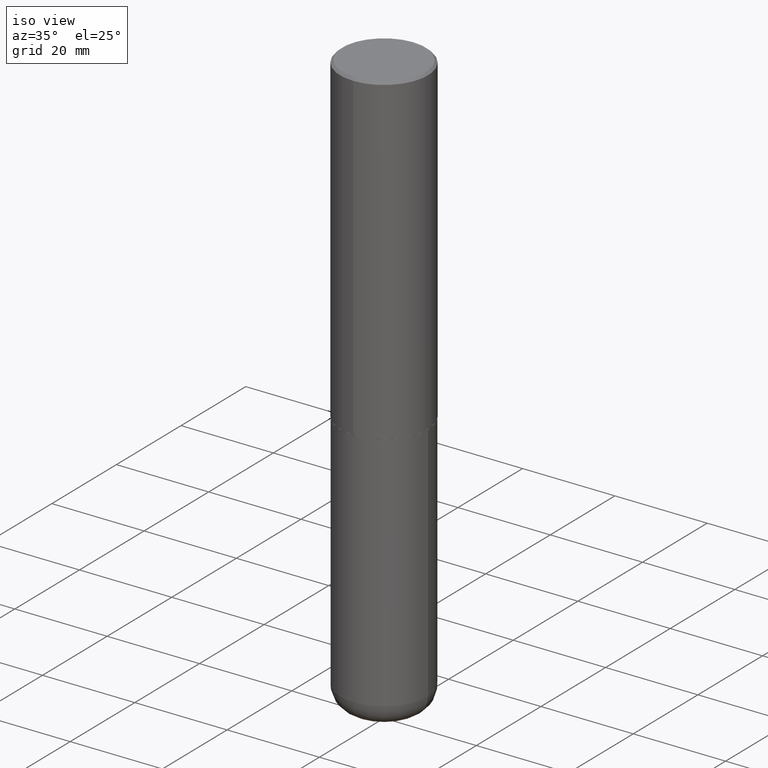
[diagram: clean part render]
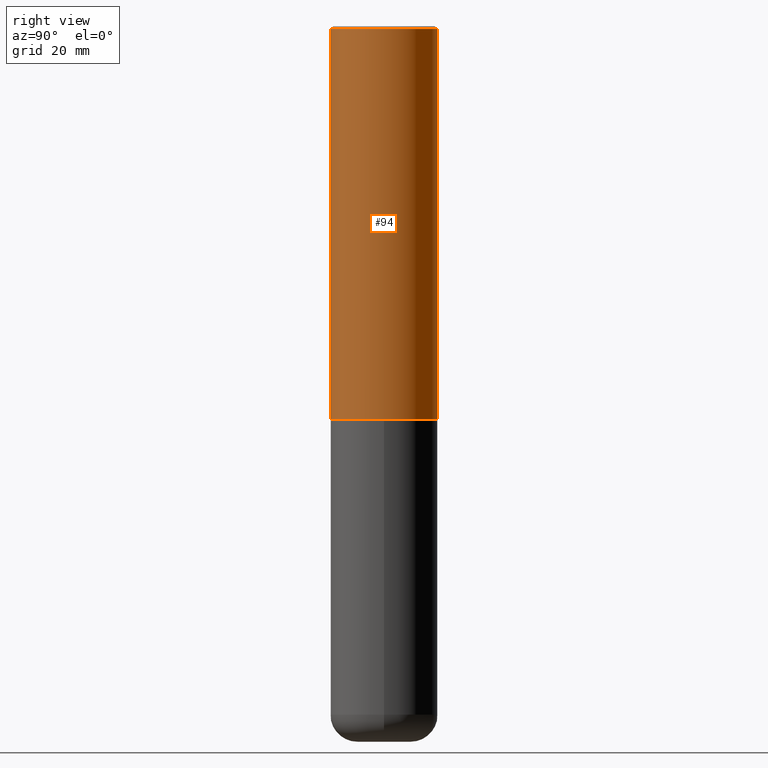
[diagram: tour spotlight — one face highlighted and labeled with its STEP entity id]
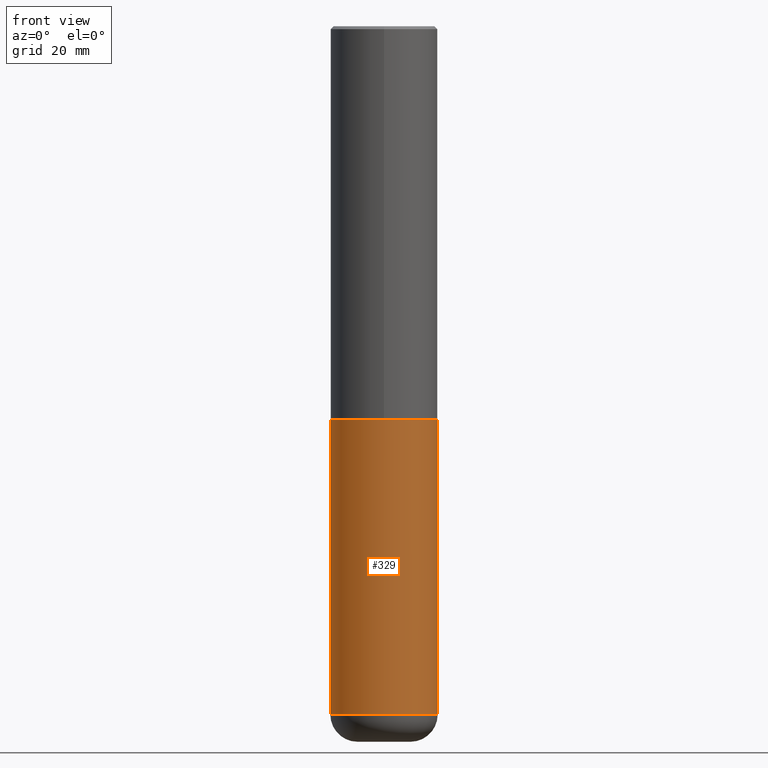
[diagram: tour spotlight — one face highlighted and labeled with its STEP entity id]
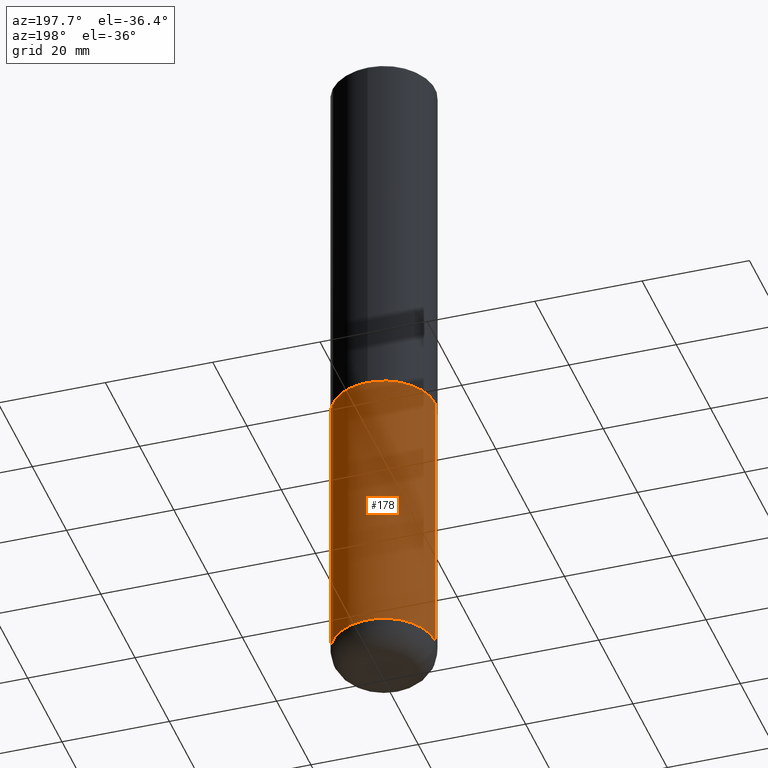
[diagram: tour spotlight — one face highlighted and labeled with its STEP entity id]
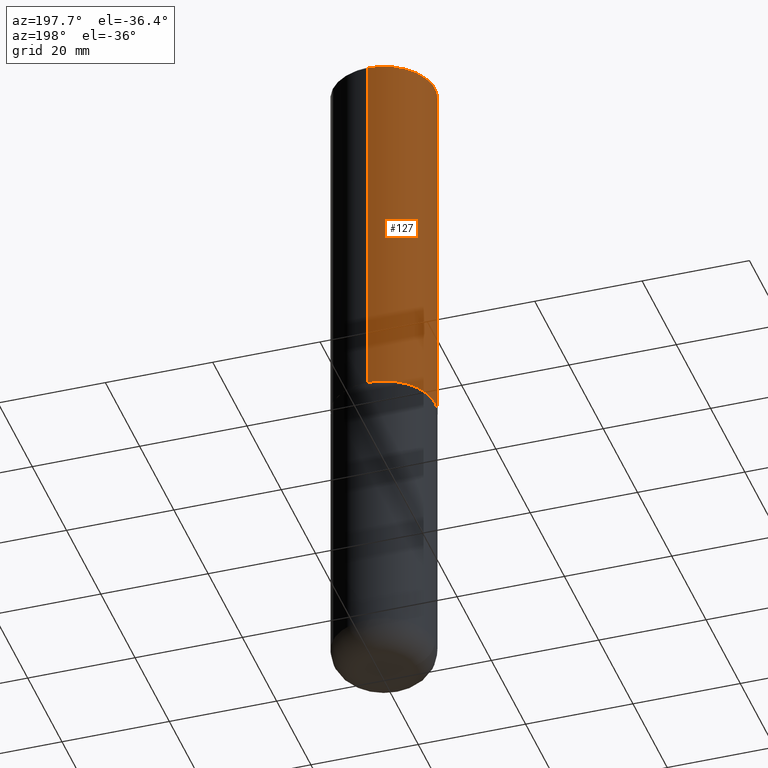
[diagram: tour spotlight — one face highlighted and labeled with its STEP entity id]
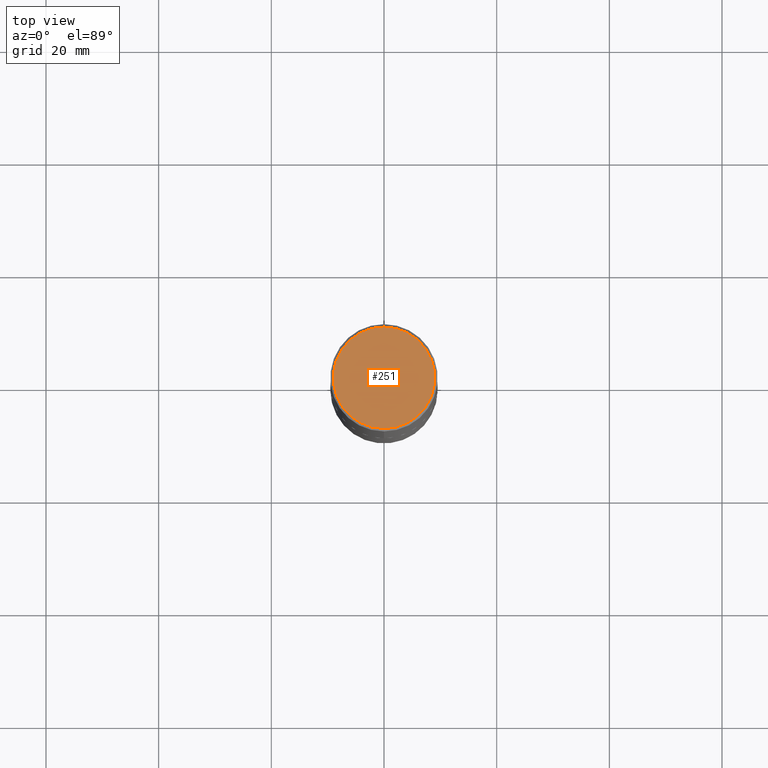
[diagram: tour spotlight — one face highlighted and labeled with its STEP entity id]
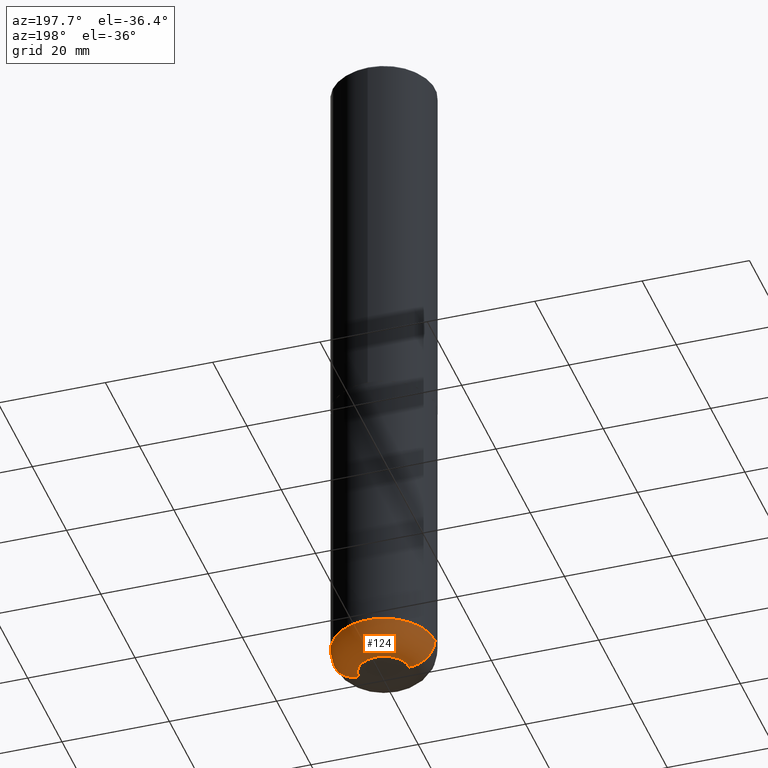
[diagram: tour spotlight — one face highlighted and labeled with its STEP entity id]
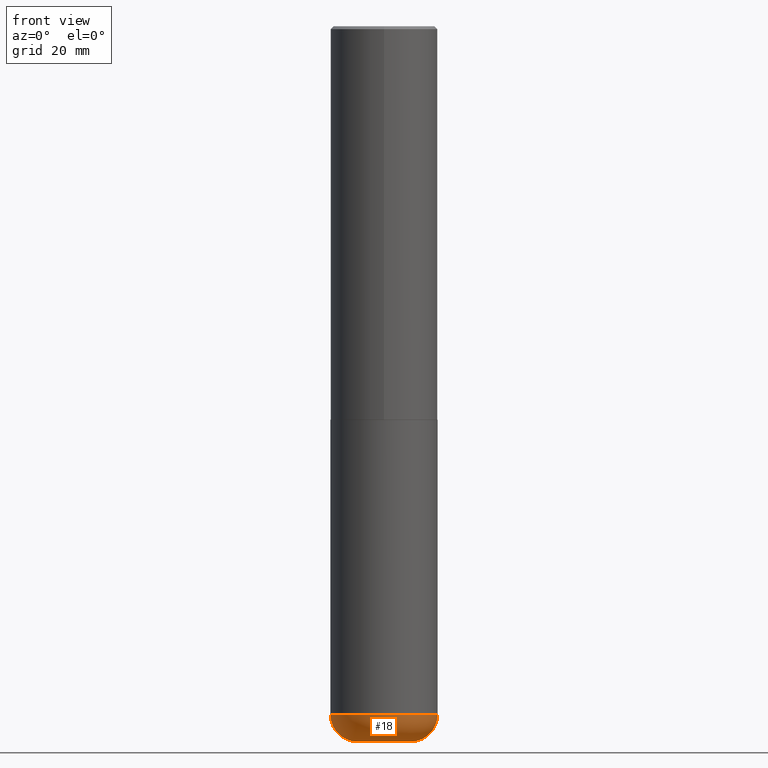
[diagram: tour spotlight — one face highlighted and labeled with its STEP entity id]
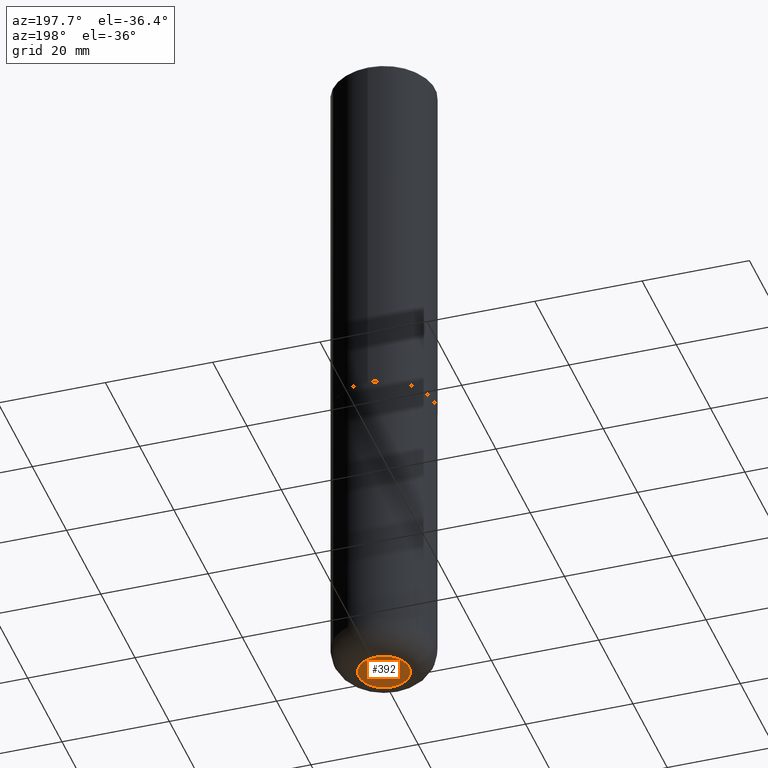
[diagram: tour spotlight — one face highlighted and labeled with its STEP entity id]
A machine part: a face-by-face anatomy tour. The part has 14 B-rep faces; the first image is the clean iso view, then the 8 largest visible faces are spotlighted one at a time (largest first), each with its STEP entity span.

Face 1 — right view, entity #94. In plain terms, the highlighted cylindrical surface (partial cylindrical patch) has radius 9.525 mm, axis along (-0, 0, 1).
Definition (entity closure, byte-faithful):
#13 = ORIENTED_EDGE ( 'NONE', *, *, #312, .T. ) ;
#14 = VECTOR ( 'NONE', #346, 39.37007874015748143 ) ;
#15 = CARTESIAN_POINT ( 'NONE',  ( 6.724165036897648492E-29, -9.595832025636787455E-15, -2.749000000000000110 ) ) ;
#28 = VERTEX_POINT ( 'NONE', #230 ) ;
#41 = EDGE_CURVE ( 'NONE', #228, #325, #368, .T. ) ;
#48 = VECTOR ( 'NONE', #375, 39.37007874015748143 ) ;
#68 = AXIS2_PLACEMENT_3D ( 'NONE', #317, #92, #411 ) ;
#92 = DIRECTION ( 'NONE',  ( -2.446040391741596606E-29, 3.490662795793665557E-15, 1.000000000000000000 ) ) ;
#93 = VERTEX_POINT ( 'NONE', #286 ) ;
#94 = ADVANCED_FACE ( 'NONE', ( #183 ), #220, .T. ) ;
#103 = EDGE_LOOP ( 'NONE', ( #330, #13, #232, #201 ) ) ;
#113 = CARTESIAN_POINT ( 'NONE',  ( 2.664535259100376880E-15, 0.3750000000000002220, -1.308998548422625521E-15 ) ) ;
#137 = DIRECTION ( 'NONE',  ( -2.446040391741596606E-29, 3.490662795793665557E-15, 1.000000000000000000 ) ) ;
#143 = CIRCLE ( 'NONE', #357, 0.3750000000000003886 ) ;
#149 = LINE ( 'NONE', #113, #14 ) ;
#183 = FACE_OUTER_BOUND ( 'NONE', #103, .T. ) ;
#193 = EDGE_CURVE ( 'NONE', #325, #93, #331, .T. ) ;
#201 = ORIENTED_EDGE ( 'NONE', *, *, #41, .F. ) ;
#220 = CYLINDRICAL_SURFACE ( 'NONE', #68, 0.3750000000000002220 ) ;
#226 = EDGE_CURVE ( 'NONE', #228, #28, #143, .T. ) ;
#228 = VERTEX_POINT ( 'NONE', #274 ) ;
#230 = CARTESIAN_POINT ( 'NONE',  ( 2.664535259100411196E-15, 0.3749999999999907296, -2.749000000000000998 ) ) ;
#232 = ORIENTED_EDGE ( 'NONE', *, *, #193, .F. ) ;
#234 = DIRECTION ( 'NONE',  ( -2.446040391741596606E-29, 3.490662795793665557E-15, 1.000000000000000000 ) ) ;
#244 = CARTESIAN_POINT ( 'NONE',  ( -2.618611004132351594E-15, -0.3750000000000002220, 1.308998548422625521E-15 ) ) ;
#265 = CARTESIAN_POINT ( 'NONE',  ( 4.892080783483214581E-31, -6.981325591587361238E-17, -0.02000000000000008715 ) ) ;
#274 = CARTESIAN_POINT ( 'NONE',  ( -2.618611004132284935E-15, -0.3750000000000099920, -2.748999999999999222 ) ) ;
#277 = DIRECTION ( 'NONE',  ( -6.982962677686265922E-15, -1.000000000000000000, 3.494488891895536035E-15 ) ) ;
#286 = CARTESIAN_POINT ( 'NONE',  ( 2.618611004132350411E-15, 0.3749999999999999445, -0.02000000000000139513 ) ) ;
#311 = CARTESIAN_POINT ( 'NONE',  ( -2.572686749164323547E-15, -0.3750000000000001110, -0.01999999999999877570 ) ) ;
#312 = EDGE_CURVE ( 'NONE', #28, #93, #149, .T. ) ;
#317 = CARTESIAN_POINT ( 'NONE',  ( 0.000000000000000000, 0.000000000000000000, 0.000000000000000000 ) ) ;
#325 = VERTEX_POINT ( 'NONE', #311 ) ;
#330 = ORIENTED_EDGE ( 'NONE', *, *, #226, .T. ) ;
#331 = CIRCLE ( 'NONE', #377, 0.3750000000000000555 ) ;
#346 = DIRECTION ( 'NONE',  ( -2.446040391741596606E-29, 3.490662795793665557E-15, 1.000000000000000000 ) ) ;
#357 = AXIS2_PLACEMENT_3D ( 'NONE', #15, #137, #364 ) ;
#364 = DIRECTION ( 'NONE',  ( -6.982962677686265922E-15, -1.000000000000000000, 2.913971193241877611E-15 ) ) ;
#368 = LINE ( 'NONE', #244, #48 ) ;
#375 = DIRECTION ( 'NONE',  ( -2.446040391741596606E-29, 3.490662795793665557E-15, 1.000000000000000000 ) ) ;
#377 = AXIS2_PLACEMENT_3D ( 'NONE', #265, #234, #277 ) ;
#411 = DIRECTION ( 'NONE',  ( -6.982962677686266711E-15, -1.000000000000000000, 3.490662795793665951E-15 ) ) ;

Face 2 — front view, entity #329. In plain terms, the highlighted cylindrical surface (partial cylindrical patch) has radius 9.525 mm, axis along (-0, 0, 1).
Definition (entity closure, byte-faithful):
#7 = VERTEX_POINT ( 'NONE', #262 ) ;
#19 = CIRCLE ( 'NONE', #206, 0.3750000000000001110 ) ;
#33 = ORIENTED_EDGE ( 'NONE', *, *, #133, .F. ) ;
#42 = DIRECTION ( 'NONE',  ( -2.445468806185136597E-29, 3.491481338843145583E-15, 1.000000000000000000 ) ) ;
#46 = FACE_OUTER_BOUND ( 'NONE', #267, .T. ) ;
#54 = LINE ( 'NONE', #188, #247 ) ;
#59 = DIRECTION ( 'NONE',  ( -2.445468806185136877E-29, 3.491481338843145188E-15, 1.000000000000000000 ) ) ;
#60 = ORIENTED_EDGE ( 'NONE', *, *, #240, .T. ) ;
#80 = CYLINDRICAL_SURFACE ( 'NONE', #217, 0.3750000000000001110 ) ;
#85 = DIRECTION ( 'NONE',  ( 1.000000000000000000, -6.982962677686265922E-15, 4.876176775795935793E-29 ) ) ;
#87 = CARTESIAN_POINT ( 'NONE',  ( -0.3750000000000000555, -1.053326420172671351E-14, -2.750000000000000000 ) ) ;
#121 = CARTESIAN_POINT ( 'NONE',  ( 0.3750000000000001110, -2.618611004132350411E-15, 1.828566290923476483E-29 ) ) ;
#133 = EDGE_CURVE ( 'NONE', #138, #365, #54, .T. ) ;
#138 = VERTEX_POINT ( 'NONE', #156 ) ;
#156 = CARTESIAN_POINT ( 'NONE',  ( -0.3750000000000000555, -1.412948998073515443E-14, -4.810000000000000497 ) ) ;
#158 = EDGE_CURVE ( 'NONE', #7, #397, #413, .T. ) ;
#164 = CARTESIAN_POINT ( 'NONE',  ( 0.3750000000000000555, -1.222018468595100145E-14, -2.750000000000000000 ) ) ;
#168 = CARTESIAN_POINT ( 'NONE',  ( 1.176270495775050811E-28, -1.679402523983553013E-14, -4.810000000000000497 ) ) ;
#175 = EDGE_CURVE ( 'NONE', #365, #397, #393, .T. ) ;
#176 = DIRECTION ( 'NONE',  ( -2.445468806185136597E-29, 3.491481338843145583E-15, 1.000000000000000000 ) ) ;
#188 = CARTESIAN_POINT ( 'NONE',  ( -0.3750000000000001110, 2.664535259100376486E-15, -1.844600658845590159E-29 ) ) ;
#206 = AXIS2_PLACEMENT_3D ( 'NONE', #168, #42, #271 ) ;
#217 = AXIS2_PLACEMENT_3D ( 'NONE', #345, #176, #85 ) ;
#223 = CARTESIAN_POINT ( 'NONE',  ( 6.725039217009124520E-29, -9.601573681818649859E-15, -2.750000000000000000 ) ) ;
#240 = EDGE_CURVE ( 'NONE', #138, #7, #19, .T. ) ;
#247 = VECTOR ( 'NONE', #59, 39.37007874015748143 ) ;
#262 = CARTESIAN_POINT ( 'NONE',  ( 0.3750000000000000555, -1.941263624396788015E-14, -4.810000000000000497 ) ) ;
#267 = EDGE_LOOP ( 'NONE', ( #33, #60, #396, #369 ) ) ;
#271 = DIRECTION ( 'NONE',  ( 1.000000000000000000, -6.982962677686265922E-15, 0.000000000000000000 ) ) ;
#294 = DIRECTION ( 'NONE',  ( 1.000000000000000000, -6.982962677686266711E-15, 0.000000000000000000 ) ) ;
#306 = VECTOR ( 'NONE', #321, 39.37007874015748143 ) ;
#321 = DIRECTION ( 'NONE',  ( -2.445468806185136877E-29, 3.491481338843145188E-15, 1.000000000000000000 ) ) ;
#322 = AXIS2_PLACEMENT_3D ( 'NONE', #223, #418, #294 ) ;
#329 = ADVANCED_FACE ( 'NONE', ( #46 ), #80, .T. ) ;
#345 = CARTESIAN_POINT ( 'NONE',  ( 0.000000000000000000, 0.000000000000000000, 0.000000000000000000 ) ) ;
#365 = VERTEX_POINT ( 'NONE', #87 ) ;
#369 = ORIENTED_EDGE ( 'NONE', *, *, #175, .F. ) ;
#393 = CIRCLE ( 'NONE', #322, 0.3750000000000000555 ) ;
#396 = ORIENTED_EDGE ( 'NONE', *, *, #158, .T. ) ;
#397 = VERTEX_POINT ( 'NONE', #164 ) ;
#413 = LINE ( 'NONE', #121, #306 ) ;
#418 = DIRECTION ( 'NONE',  ( -2.445468806185136597E-29, 3.491481338843145583E-15, 1.000000000000000000 ) ) ;

Face 3 — auxiliary view, entity #178. In plain terms, the highlighted cylindrical surface (partial cylindrical patch) has radius 9.525 mm, axis along (-0, 0, 1).
Definition (entity closure, byte-faithful):
#7 = VERTEX_POINT ( 'NONE', #262 ) ;
#9 = EDGE_CURVE ( 'NONE', #397, #365, #125, .T. ) ;
#34 = AXIS2_PLACEMENT_3D ( 'NONE', #77, #142, #81 ) ;
#49 = EDGE_CURVE ( 'NONE', #7, #138, #104, .T. ) ;
#54 = LINE ( 'NONE', #188, #247 ) ;
#59 = DIRECTION ( 'NONE',  ( -2.445468806185136877E-29, 3.491481338843145188E-15, 1.000000000000000000 ) ) ;
#64 = DIRECTION ( 'NONE',  ( -2.445468806185136597E-29, 3.491481338843145583E-15, 1.000000000000000000 ) ) ;
#67 = ORIENTED_EDGE ( 'NONE', *, *, #9, .F. ) ;
#72 = ORIENTED_EDGE ( 'NONE', *, *, #133, .T. ) ;
#77 = CARTESIAN_POINT ( 'NONE',  ( 1.176270495775050811E-28, -1.679402523983553013E-14, -4.810000000000000497 ) ) ;
#81 = DIRECTION ( 'NONE',  ( 1.000000000000000000, -6.982962677686265922E-15, 0.000000000000000000 ) ) ;
#87 = CARTESIAN_POINT ( 'NONE',  ( -0.3750000000000000555, -1.053326420172671351E-14, -2.750000000000000000 ) ) ;
#90 = AXIS2_PLACEMENT_3D ( 'NONE', #100, #150, #371 ) ;
#97 = CYLINDRICAL_SURFACE ( 'NONE', #90, 0.3750000000000001110 ) ;
#100 = CARTESIAN_POINT ( 'NONE',  ( 0.000000000000000000, 0.000000000000000000, 0.000000000000000000 ) ) ;
#104 = CIRCLE ( 'NONE', #34, 0.3750000000000001110 ) ;
#106 = ORIENTED_EDGE ( 'NONE', *, *, #49, .T. ) ;
#117 = EDGE_LOOP ( 'NONE', ( #106, #72, #67, #303 ) ) ;
#121 = CARTESIAN_POINT ( 'NONE',  ( 0.3750000000000001110, -2.618611004132350411E-15, 1.828566290923476483E-29 ) ) ;
#125 = CIRCLE ( 'NONE', #410, 0.3750000000000000555 ) ;
#131 = CARTESIAN_POINT ( 'NONE',  ( 6.725039217009124520E-29, -9.601573681818649859E-15, -2.750000000000000000 ) ) ;
#133 = EDGE_CURVE ( 'NONE', #138, #365, #54, .T. ) ;
#138 = VERTEX_POINT ( 'NONE', #156 ) ;
#142 = DIRECTION ( 'NONE',  ( -2.445468806185136597E-29, 3.491481338843145583E-15, 1.000000000000000000 ) ) ;
#150 = DIRECTION ( 'NONE',  ( -2.445468806185136597E-29, 3.491481338843145583E-15, 1.000000000000000000 ) ) ;
#156 = CARTESIAN_POINT ( 'NONE',  ( -0.3750000000000000555, -1.412948998073515443E-14, -4.810000000000000497 ) ) ;
#158 = EDGE_CURVE ( 'NONE', #7, #397, #413, .T. ) ;
#164 = CARTESIAN_POINT ( 'NONE',  ( 0.3750000000000000555, -1.222018468595100145E-14, -2.750000000000000000 ) ) ;
#178 = ADVANCED_FACE ( 'NONE', ( #389 ), #97, .T. ) ;
#188 = CARTESIAN_POINT ( 'NONE',  ( -0.3750000000000001110, 2.664535259100376486E-15, -1.844600658845590159E-29 ) ) ;
#247 = VECTOR ( 'NONE', #59, 39.37007874015748143 ) ;
#262 = CARTESIAN_POINT ( 'NONE',  ( 0.3750000000000000555, -1.941263624396788015E-14, -4.810000000000000497 ) ) ;
#303 = ORIENTED_EDGE ( 'NONE', *, *, #158, .F. ) ;
#306 = VECTOR ( 'NONE', #321, 39.37007874015748143 ) ;
#321 = DIRECTION ( 'NONE',  ( -2.445468806185136877E-29, 3.491481338843145188E-15, 1.000000000000000000 ) ) ;
#365 = VERTEX_POINT ( 'NONE', #87 ) ;
#371 = DIRECTION ( 'NONE',  ( 1.000000000000000000, -6.982962677686265922E-15, 4.876176775795935793E-29 ) ) ;
#389 = FACE_OUTER_BOUND ( 'NONE', #117, .T. ) ;
#397 = VERTEX_POINT ( 'NONE', #164 ) ;
#398 = DIRECTION ( 'NONE',  ( 1.000000000000000000, -6.982962677686266711E-15, 0.000000000000000000 ) ) ;
#410 = AXIS2_PLACEMENT_3D ( 'NONE', #131, #64, #398 ) ;
#413 = LINE ( 'NONE', #121, #306 ) ;

Face 4 — auxiliary view, entity #127. In plain terms, the highlighted cylindrical surface (partial cylindrical patch) has radius 9.525 mm, axis along (-0, 0, 1).
Definition (entity closure, byte-faithful):
#3 = FACE_OUTER_BOUND ( 'NONE', #385, .T. ) ;
#14 = VECTOR ( 'NONE', #346, 39.37007874015748143 ) ;
#17 = DIRECTION ( 'NONE',  ( -6.982962677686265922E-15, -1.000000000000000000, 2.913971193241877611E-15 ) ) ;
#28 = VERTEX_POINT ( 'NONE', #230 ) ;
#41 = EDGE_CURVE ( 'NONE', #228, #325, #368, .T. ) ;
#48 = VECTOR ( 'NONE', #375, 39.37007874015748143 ) ;
#51 = AXIS2_PLACEMENT_3D ( 'NONE', #239, #207, #17 ) ;
#62 = EDGE_CURVE ( 'NONE', #28, #228, #280, .T. ) ;
#93 = VERTEX_POINT ( 'NONE', #286 ) ;
#101 = ORIENTED_EDGE ( 'NONE', *, *, #62, .T. ) ;
#113 = CARTESIAN_POINT ( 'NONE',  ( 2.664535259100376880E-15, 0.3750000000000002220, -1.308998548422625521E-15 ) ) ;
#122 = DIRECTION ( 'NONE',  ( -2.446040391741596606E-29, 3.490662795793665557E-15, 1.000000000000000000 ) ) ;
#127 = ADVANCED_FACE ( 'NONE', ( #3 ), #184, .T. ) ;
#149 = LINE ( 'NONE', #113, #14 ) ;
#152 = ORIENTED_EDGE ( 'NONE', *, *, #370, .F. ) ;
#154 = AXIS2_PLACEMENT_3D ( 'NONE', #218, #122, #255 ) ;
#159 = ORIENTED_EDGE ( 'NONE', *, *, #41, .T. ) ;
#160 = DIRECTION ( 'NONE',  ( -6.982962677686265922E-15, -1.000000000000000000, 3.494488891895536035E-15 ) ) ;
#166 = ORIENTED_EDGE ( 'NONE', *, *, #312, .F. ) ;
#184 = CYLINDRICAL_SURFACE ( 'NONE', #154, 0.3750000000000002220 ) ;
#207 = DIRECTION ( 'NONE',  ( -2.446040391741596606E-29, 3.490662795793665557E-15, 1.000000000000000000 ) ) ;
#218 = CARTESIAN_POINT ( 'NONE',  ( 0.000000000000000000, 0.000000000000000000, 0.000000000000000000 ) ) ;
#228 = VERTEX_POINT ( 'NONE', #274 ) ;
#230 = CARTESIAN_POINT ( 'NONE',  ( 2.664535259100411196E-15, 0.3749999999999907296, -2.749000000000000998 ) ) ;
#239 = CARTESIAN_POINT ( 'NONE',  ( 6.724165036897648492E-29, -9.595832025636787455E-15, -2.749000000000000110 ) ) ;
#244 = CARTESIAN_POINT ( 'NONE',  ( -2.618611004132351594E-15, -0.3750000000000002220, 1.308998548422625521E-15 ) ) ;
#249 = CARTESIAN_POINT ( 'NONE',  ( 4.892080783483214581E-31, -6.981325591587361238E-17, -0.02000000000000008715 ) ) ;
#255 = DIRECTION ( 'NONE',  ( -6.982962677686266711E-15, -1.000000000000000000, 3.490662795793665951E-15 ) ) ;
#259 = DIRECTION ( 'NONE',  ( -2.446040391741596606E-29, 3.490662795793665557E-15, 1.000000000000000000 ) ) ;
#261 = CIRCLE ( 'NONE', #358, 0.3750000000000000555 ) ;
#274 = CARTESIAN_POINT ( 'NONE',  ( -2.618611004132284935E-15, -0.3750000000000099920, -2.748999999999999222 ) ) ;
#280 = CIRCLE ( 'NONE', #51, 0.3750000000000003886 ) ;
#286 = CARTESIAN_POINT ( 'NONE',  ( 2.618611004132350411E-15, 0.3749999999999999445, -0.02000000000000139513 ) ) ;
#311 = CARTESIAN_POINT ( 'NONE',  ( -2.572686749164323547E-15, -0.3750000000000001110, -0.01999999999999877570 ) ) ;
#312 = EDGE_CURVE ( 'NONE', #28, #93, #149, .T. ) ;
#325 = VERTEX_POINT ( 'NONE', #311 ) ;
#346 = DIRECTION ( 'NONE',  ( -2.446040391741596606E-29, 3.490662795793665557E-15, 1.000000000000000000 ) ) ;
#358 = AXIS2_PLACEMENT_3D ( 'NONE', #249, #259, #160 ) ;
#368 = LINE ( 'NONE', #244, #48 ) ;
#370 = EDGE_CURVE ( 'NONE', #93, #325, #261, .T. ) ;
#375 = DIRECTION ( 'NONE',  ( -2.446040391741596606E-29, 3.490662795793665557E-15, 1.000000000000000000 ) ) ;
#385 = EDGE_LOOP ( 'NONE', ( #166, #101, #159, #152 ) ) ;

Face 5 — top view, entity #251. In plain terms, the highlighted planar face has unit normal (0, -0, -1).
Definition (entity closure, byte-faithful):
#66 = PLANE ( 'NONE',  #120 ) ;
#88 = CARTESIAN_POINT ( 'NONE',  ( 2.548781377355487113E-15, 0.3549999999999999822, -1.192522237898212341E-15 ) ) ;
#108 = CARTESIAN_POINT ( 'NONE',  ( -1.141397163745304909E-45, 1.628849886601155835E-31, 4.666305460853910467E-17 ) ) ;
#119 = EDGE_CURVE ( 'NONE', #288, #334, #383, .T. ) ;
#120 = AXIS2_PLACEMENT_3D ( 'NONE', #172, #361, #332 ) ;
#157 = DIRECTION ( 'NONE',  ( -2.446040391741596606E-29, 3.490662795793665557E-15, 1.000000000000000000 ) ) ;
#163 = EDGE_LOOP ( 'NONE', ( #316, #299 ) ) ;
#165 = CARTESIAN_POINT ( 'NONE',  ( -2.504081769186608216E-15, -0.3549999999999999822, 1.285848347115290366E-15 ) ) ;
#172 = CARTESIAN_POINT ( 'NONE',  ( 2.478951750578624209E-15, 0.3549999999999999822, -1.215853765202481601E-15 ) ) ;
#198 = CIRCLE ( 'NONE', #415, 0.3549999999999999822 ) ;
#204 = DIRECTION ( 'NONE',  ( -6.982962677686265922E-15, -1.000000000000000000, 3.490662795793665557E-15 ) ) ;
#236 = EDGE_CURVE ( 'NONE', #334, #288, #198, .T. ) ;
#237 = DIRECTION ( 'NONE',  ( -2.446040391741596606E-29, 3.490662795793665557E-15, 1.000000000000000000 ) ) ;
#251 = ADVANCED_FACE ( 'NONE', ( #374 ), #66, .F. ) ;
#258 = CARTESIAN_POINT ( 'NONE',  ( -1.141397163745304909E-45, 1.628849886601155835E-31, 4.666305460853910467E-17 ) ) ;
#270 = AXIS2_PLACEMENT_3D ( 'NONE', #258, #157, #390 ) ;
#288 = VERTEX_POINT ( 'NONE', #165 ) ;
#299 = ORIENTED_EDGE ( 'NONE', *, *, #119, .T. ) ;
#316 = ORIENTED_EDGE ( 'NONE', *, *, #236, .T. ) ;
#332 = DIRECTION ( 'NONE',  ( 6.982962677686265922E-15, 1.000000000000000000, -3.490662795793665557E-15 ) ) ;
#334 = VERTEX_POINT ( 'NONE', #88 ) ;
#361 = DIRECTION ( 'NONE',  ( 2.446040391741596045E-29, -3.490662795793665557E-15, -1.000000000000000000 ) ) ;
#374 = FACE_OUTER_BOUND ( 'NONE', #163, .T. ) ;
#383 = CIRCLE ( 'NONE', #270, 0.3549999999999999822 ) ;
#390 = DIRECTION ( 'NONE',  ( -6.982962677686265922E-15, -1.000000000000000000, 3.490662795793665557E-15 ) ) ;
#415 = AXIS2_PLACEMENT_3D ( 'NONE', #108, #237, #204 ) ;

Face 6 — auxiliary view, entity #124. In plain terms, the highlighted toroidal blend (fillet) surface has major radius 4.699 mm and minor (blend) radius 4.826 mm.
Definition (entity closure, byte-faithful):
#5 = CIRCLE ( 'NONE', #242, 0.1850000000000000810 ) ;
#7 = VERTEX_POINT ( 'NONE', #262 ) ;
#34 = AXIS2_PLACEMENT_3D ( 'NONE', #77, #142, #81 ) ;
#39 = ORIENTED_EDGE ( 'NONE', *, *, #49, .F. ) ;
#45 = CARTESIAN_POINT ( 'NONE',  ( -0.1850000000000000533, -1.547952117867934441E-14, -4.810000000000000497 ) ) ;
#49 = EDGE_CURVE ( 'NONE', #7, #138, #104, .T. ) ;
#52 = EDGE_CURVE ( 'NONE', #362, #138, #347, .T. ) ;
#58 = TOROIDAL_SURFACE ( 'NONE', #161, 0.1850000000000000533, 0.1899999999999999467 ) ;
#70 = CARTESIAN_POINT ( 'NONE',  ( 0.1850000000000000810, -1.874925478958768986E-14, -5.000000000000000000 ) ) ;
#73 = CARTESIAN_POINT ( 'NONE',  ( 1.176270495775050811E-28, -1.679402523983553013E-14, -4.810000000000000497 ) ) ;
#74 = EDGE_CURVE ( 'NONE', #235, #362, #5, .T. ) ;
#77 = CARTESIAN_POINT ( 'NONE',  ( 1.176270495775050811E-28, -1.679402523983553013E-14, -4.810000000000000497 ) ) ;
#81 = DIRECTION ( 'NONE',  ( 1.000000000000000000, -6.982962677686265922E-15, 0.000000000000000000 ) ) ;
#104 = CIRCLE ( 'NONE', #34, 0.3750000000000001110 ) ;
#124 = ADVANCED_FACE ( 'NONE', ( #264 ), #58, .T. ) ;
#130 = DIRECTION ( 'NONE',  ( -2.445468806185136597E-29, 3.491481338843145583E-15, 1.000000000000000000 ) ) ;
#135 = EDGE_LOOP ( 'NONE', ( #386, #202, #39, #170 ) ) ;
#136 = DIRECTION ( 'NONE',  ( 1.000000000000000000, -6.982962677686272233E-15, 0.000000000000000000 ) ) ;
#138 = VERTEX_POINT ( 'NONE', #156 ) ;
#139 = CARTESIAN_POINT ( 'NONE',  ( 1.222734403092568523E-28, -1.745740669421572989E-14, -5.000000000000000000 ) ) ;
#142 = DIRECTION ( 'NONE',  ( -2.445468806185136597E-29, 3.491481338843145583E-15, 1.000000000000000000 ) ) ;
#144 = DIRECTION ( 'NONE',  ( -2.445468806185136597E-29, 3.491481338843145583E-15, 1.000000000000000000 ) ) ;
#155 = CIRCLE ( 'NONE', #408, 0.1899999999999999190 ) ;
#156 = CARTESIAN_POINT ( 'NONE',  ( -0.3750000000000000555, -1.412948998073515443E-14, -4.810000000000000497 ) ) ;
#161 = AXIS2_PLACEMENT_3D ( 'NONE', #73, #130, #309 ) ;
#170 = ORIENTED_EDGE ( 'NONE', *, *, #348, .F. ) ;
#202 = ORIENTED_EDGE ( 'NONE', *, *, #52, .T. ) ;
#235 = VERTEX_POINT ( 'NONE', #70 ) ;
#242 = AXIS2_PLACEMENT_3D ( 'NONE', #139, #144, #136 ) ;
#262 = CARTESIAN_POINT ( 'NONE',  ( 0.3750000000000000555, -1.941263624396788015E-14, -4.810000000000000497 ) ) ;
#264 = FACE_OUTER_BOUND ( 'NONE', #135, .T. ) ;
#279 = AXIS2_PLACEMENT_3D ( 'NONE', #45, #310, #341 ) ;
#282 = CARTESIAN_POINT ( 'NONE',  ( -0.1850000000000000810, -1.513619630689734772E-14, -5.000000000000000000 ) ) ;
#289 = DIRECTION ( 'NONE',  ( 1.000000000000000000, -6.982962677686264344E-15, 0.000000000000000000 ) ) ;
#309 = DIRECTION ( 'NONE',  ( 1.000000000000000000, -6.982962677686269077E-15, 4.883557194083113462E-29 ) ) ;
#310 = DIRECTION ( 'NONE',  ( 7.105427357601001859E-15, 1.000000000000000000, -3.491481338843145583E-15 ) ) ;
#341 = DIRECTION ( 'NONE',  ( -1.000000000000000000, 7.105427357601001070E-15, 0.000000000000000000 ) ) ;
#342 = CARTESIAN_POINT ( 'NONE',  ( 0.1850000000000000533, -1.808587333520749010E-14, -4.810000000000000497 ) ) ;
#347 = CIRCLE ( 'NONE', #279, 0.1899999999999999190 ) ;
#348 = EDGE_CURVE ( 'NONE', #235, #7, #155, .T. ) ;
#355 = DIRECTION ( 'NONE',  ( -6.982962677686266711E-15, -1.000000000000000000, 3.491481338843145583E-15 ) ) ;
#362 = VERTEX_POINT ( 'NONE', #282 ) ;
#386 = ORIENTED_EDGE ( 'NONE', *, *, #74, .T. ) ;
#408 = AXIS2_PLACEMENT_3D ( 'NONE', #342, #355, #289 ) ;

Face 7 — front view, entity #18. In plain terms, the highlighted toroidal blend (fillet) surface has major radius 4.699 mm and minor (blend) radius 4.826 mm.
Definition (entity closure, byte-faithful):
#6 = DIRECTION ( 'NONE',  ( -2.445468806185136597E-29, 3.491481338843145583E-15, 1.000000000000000000 ) ) ;
#7 = VERTEX_POINT ( 'NONE', #262 ) ;
#16 = EDGE_LOOP ( 'NONE', ( #169, #196, #314, #308 ) ) ;
#18 = ADVANCED_FACE ( 'NONE', ( #195 ), #177, .T. ) ;
#19 = CIRCLE ( 'NONE', #206, 0.3750000000000001110 ) ;
#24 = CARTESIAN_POINT ( 'NONE',  ( 1.222734403092568523E-28, -1.745740669421572989E-14, -5.000000000000000000 ) ) ;
#42 = DIRECTION ( 'NONE',  ( -2.445468806185136597E-29, 3.491481338843145583E-15, 1.000000000000000000 ) ) ;
#45 = CARTESIAN_POINT ( 'NONE',  ( -0.1850000000000000533, -1.547952117867934441E-14, -4.810000000000000497 ) ) ;
#52 = EDGE_CURVE ( 'NONE', #362, #138, #347, .T. ) ;
#70 = CARTESIAN_POINT ( 'NONE',  ( 0.1850000000000000810, -1.874925478958768986E-14, -5.000000000000000000 ) ) ;
#84 = CIRCLE ( 'NONE', #407, 0.1850000000000000810 ) ;
#111 = AXIS2_PLACEMENT_3D ( 'NONE', #298, #6, #128 ) ;
#123 = DIRECTION ( 'NONE',  ( 1.000000000000000000, -6.982962677686272233E-15, 0.000000000000000000 ) ) ;
#128 = DIRECTION ( 'NONE',  ( 1.000000000000000000, -6.982962677686269077E-15, 4.883557194083113462E-29 ) ) ;
#138 = VERTEX_POINT ( 'NONE', #156 ) ;
#155 = CIRCLE ( 'NONE', #408, 0.1899999999999999190 ) ;
#156 = CARTESIAN_POINT ( 'NONE',  ( -0.3750000000000000555, -1.412948998073515443E-14, -4.810000000000000497 ) ) ;
#167 = EDGE_CURVE ( 'NONE', #362, #235, #84, .T. ) ;
#168 = CARTESIAN_POINT ( 'NONE',  ( 1.176270495775050811E-28, -1.679402523983553013E-14, -4.810000000000000497 ) ) ;
#169 = ORIENTED_EDGE ( 'NONE', *, *, #52, .F. ) ;
#177 = TOROIDAL_SURFACE ( 'NONE', #111, 0.1850000000000000533, 0.1899999999999999467 ) ;
#195 = FACE_OUTER_BOUND ( 'NONE', #16, .T. ) ;
#196 = ORIENTED_EDGE ( 'NONE', *, *, #167, .T. ) ;
#206 = AXIS2_PLACEMENT_3D ( 'NONE', #168, #42, #271 ) ;
#235 = VERTEX_POINT ( 'NONE', #70 ) ;
#240 = EDGE_CURVE ( 'NONE', #138, #7, #19, .T. ) ;
#262 = CARTESIAN_POINT ( 'NONE',  ( 0.3750000000000000555, -1.941263624396788015E-14, -4.810000000000000497 ) ) ;
#271 = DIRECTION ( 'NONE',  ( 1.000000000000000000, -6.982962677686265922E-15, 0.000000000000000000 ) ) ;
#279 = AXIS2_PLACEMENT_3D ( 'NONE', #45, #310, #341 ) ;
#282 = CARTESIAN_POINT ( 'NONE',  ( -0.1850000000000000810, -1.513619630689734772E-14, -5.000000000000000000 ) ) ;
#289 = DIRECTION ( 'NONE',  ( 1.000000000000000000, -6.982962677686264344E-15, 0.000000000000000000 ) ) ;
#293 = DIRECTION ( 'NONE',  ( -2.445468806185136597E-29, 3.491481338843145583E-15, 1.000000000000000000 ) ) ;
#298 = CARTESIAN_POINT ( 'NONE',  ( 1.176270495775050811E-28, -1.679402523983553013E-14, -4.810000000000000497 ) ) ;
#308 = ORIENTED_EDGE ( 'NONE', *, *, #240, .F. ) ;
#310 = DIRECTION ( 'NONE',  ( 7.105427357601001859E-15, 1.000000000000000000, -3.491481338843145583E-15 ) ) ;
#314 = ORIENTED_EDGE ( 'NONE', *, *, #348, .T. ) ;
#341 = DIRECTION ( 'NONE',  ( -1.000000000000000000, 7.105427357601001070E-15, 0.000000000000000000 ) ) ;
#342 = CARTESIAN_POINT ( 'NONE',  ( 0.1850000000000000533, -1.808587333520749010E-14, -4.810000000000000497 ) ) ;
#347 = CIRCLE ( 'NONE', #279, 0.1899999999999999190 ) ;
#348 = EDGE_CURVE ( 'NONE', #235, #7, #155, .T. ) ;
#355 = DIRECTION ( 'NONE',  ( -6.982962677686266711E-15, -1.000000000000000000, 3.491481338843145583E-15 ) ) ;
#362 = VERTEX_POINT ( 'NONE', #282 ) ;
#407 = AXIS2_PLACEMENT_3D ( 'NONE', #24, #293, #123 ) ;
#408 = AXIS2_PLACEMENT_3D ( 'NONE', #342, #355, #289 ) ;

Face 8 — auxiliary view, entity #392. In plain terms, the highlighted planar face has unit normal (0, -0, -1).
Definition (entity closure, byte-faithful):
#5 = CIRCLE ( 'NONE', #242, 0.1850000000000000810 ) ;
#8 = FACE_OUTER_BOUND ( 'NONE', #132, .T. ) ;
#24 = CARTESIAN_POINT ( 'NONE',  ( 1.222734403092568523E-28, -1.745740669421572989E-14, -5.000000000000000000 ) ) ;
#26 = AXIS2_PLACEMENT_3D ( 'NONE', #98, #301, #388 ) ;
#57 = PLANE ( 'NONE',  #26 ) ;
#70 = CARTESIAN_POINT ( 'NONE',  ( 0.1850000000000000810, -1.874925478958768986E-14, -5.000000000000000000 ) ) ;
#74 = EDGE_CURVE ( 'NONE', #235, #362, #5, .T. ) ;
#84 = CIRCLE ( 'NONE', #407, 0.1850000000000000810 ) ;
#98 = CARTESIAN_POINT ( 'NONE',  ( 1.222734403092568523E-28, -1.745740669421572989E-14, -5.000000000000000000 ) ) ;
#123 = DIRECTION ( 'NONE',  ( 1.000000000000000000, -6.982962677686272233E-15, 0.000000000000000000 ) ) ;
#132 = EDGE_LOOP ( 'NONE', ( #273, #285 ) ) ;
#136 = DIRECTION ( 'NONE',  ( 1.000000000000000000, -6.982962677686272233E-15, 0.000000000000000000 ) ) ;
#139 = CARTESIAN_POINT ( 'NONE',  ( 1.222734403092568523E-28, -1.745740669421572989E-14, -5.000000000000000000 ) ) ;
#144 = DIRECTION ( 'NONE',  ( -2.445468806185136597E-29, 3.491481338843145583E-15, 1.000000000000000000 ) ) ;
#167 = EDGE_CURVE ( 'NONE', #362, #235, #84, .T. ) ;
#235 = VERTEX_POINT ( 'NONE', #70 ) ;
#242 = AXIS2_PLACEMENT_3D ( 'NONE', #139, #144, #136 ) ;
#273 = ORIENTED_EDGE ( 'NONE', *, *, #74, .F. ) ;
#282 = CARTESIAN_POINT ( 'NONE',  ( -0.1850000000000000810, -1.513619630689734772E-14, -5.000000000000000000 ) ) ;
#285 = ORIENTED_EDGE ( 'NONE', *, *, #167, .F. ) ;
#293 = DIRECTION ( 'NONE',  ( -2.445468806185136597E-29, 3.491481338843145583E-15, 1.000000000000000000 ) ) ;
#301 = DIRECTION ( 'NONE',  ( 2.438088387897960049E-29, -3.491481338843145188E-15, -1.000000000000000000 ) ) ;
#362 = VERTEX_POINT ( 'NONE', #282 ) ;
#388 = DIRECTION ( 'NONE',  ( -1.000000000000000000, 6.982962677686265922E-15, -4.876176775795935793E-29 ) ) ;
#392 = ADVANCED_FACE ( 'NONE', ( #8 ), #57, .T. ) ;
#407 = AXIS2_PLACEMENT_3D ( 'NONE', #24, #293, #123 ) ;